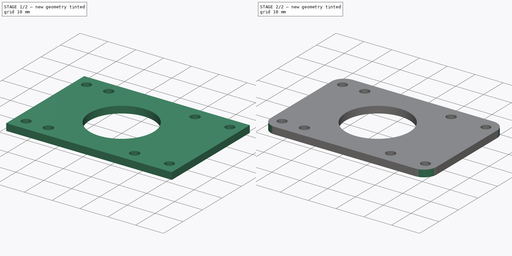
[diagram: build sequence overview — one tinted view per stage of 2, left to right]
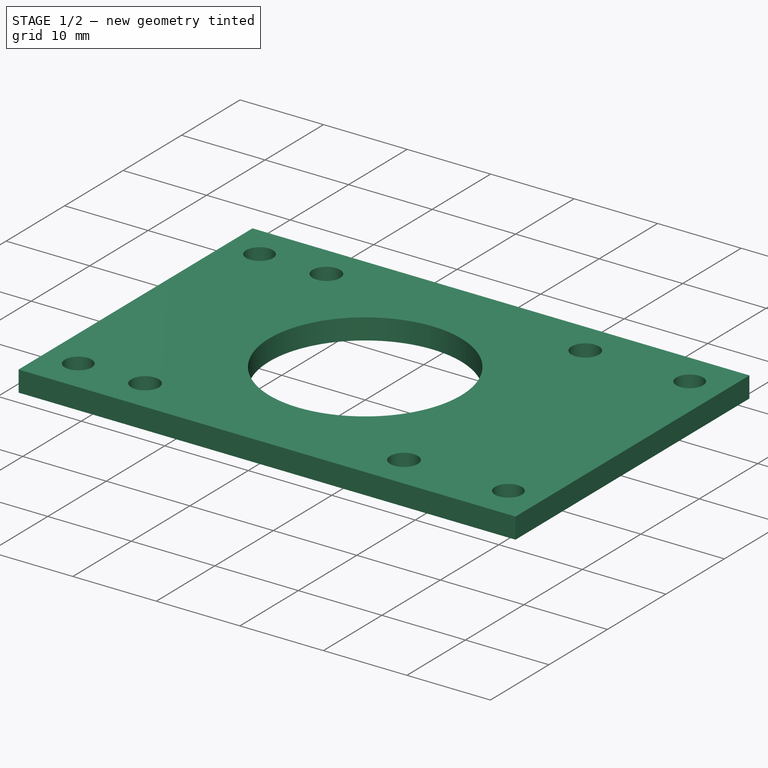
[diagram: stage 1 of 2 — iso view after this stage's code; geometry added in this stage tinted green]
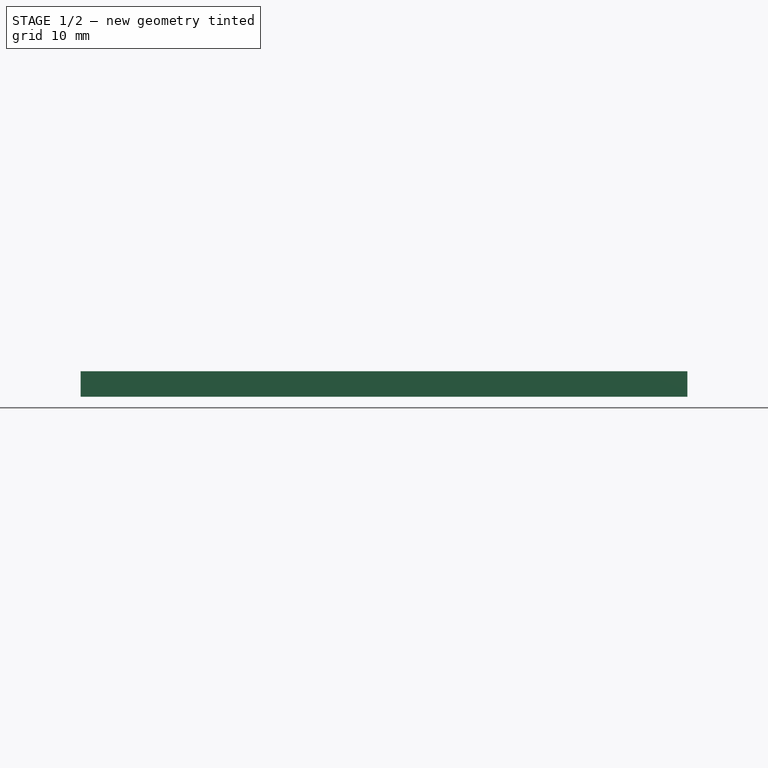
[diagram: stage 1 of 2 — front view after this stage's code; geometry added in this stage tinted green]
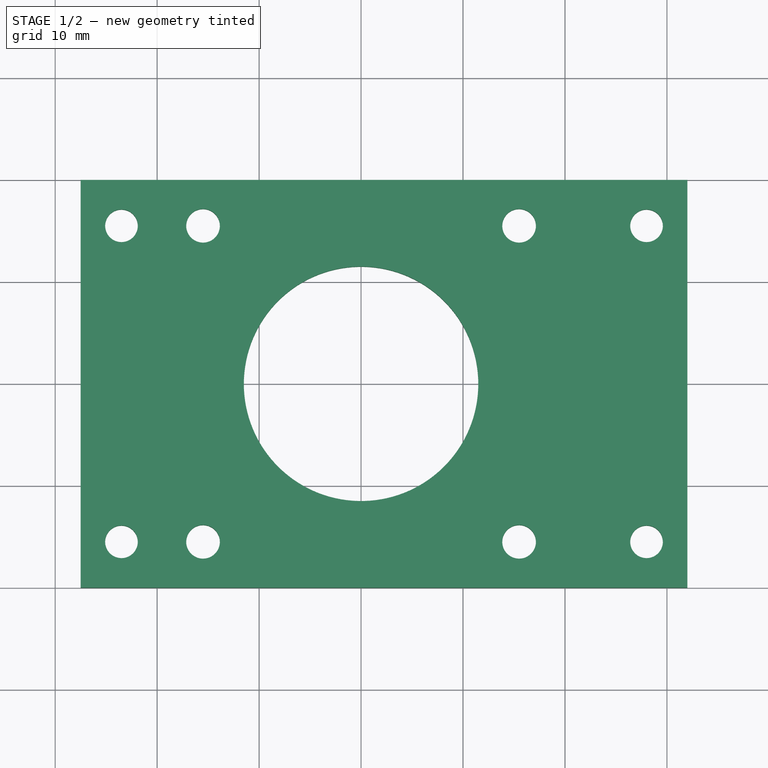
[diagram: stage 1 of 2 — top view after this stage's code; geometry added in this stage tinted green]
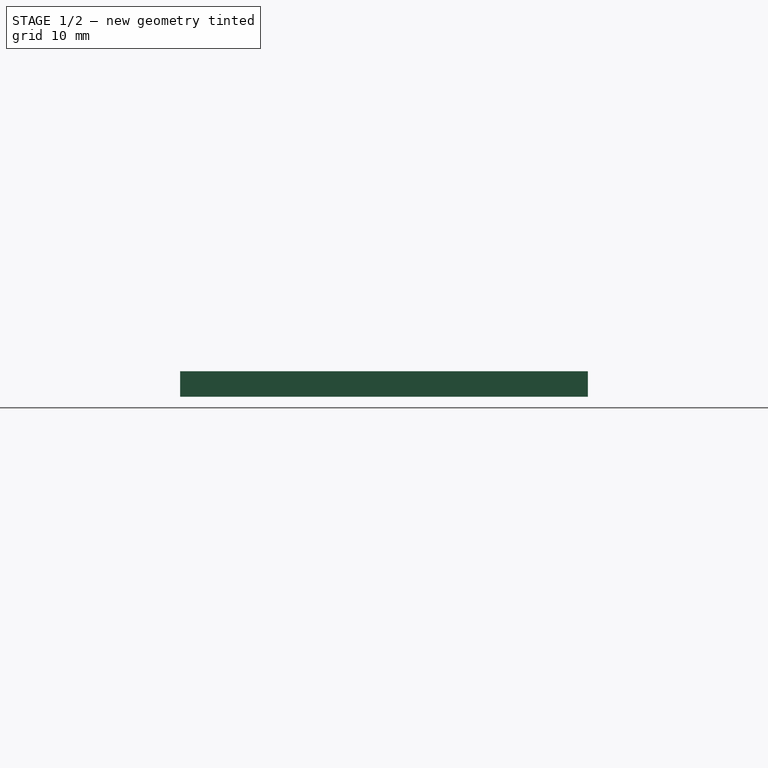
[diagram: stage 1 of 2 — right view after this stage's code; geometry added in this stage tinted green]
FCSTD DOCUMENT  (FreeCAD 0.18R14090 (Git))
Label: ExtruderDriveHolder4_NEMA17_Alt
License: All rights reserved
LicenseURL: http://en.wikipedia.org/wiki/All_rights_reserved
objects: Sketcher::SketchObject×1, PartDesign::Pad×1, PartDesign::Fillet×1, PartDesign::Body×1, App::Part×1
note: 5 computed .brp shape members not serialized (recipe doc carries the construction recipe); baked Part::Feature solids carry a one-line shape summary decoded from their .brp

FEATURE [Sketcher::SketchObject] Sketch  label="SpacerBaseSketch"
  MapMode = 5
  Support = -> [XY_Plane001]
  sketch-geometry (29):
    g0: LineSegment [constr] StartX=20 StartY=-20 StartZ=0 EndX=20 EndY=20 EndZ=0
    g1: LineSegment StartX=20 StartY=20 StartZ=0 EndX=-20 EndY=20 EndZ=0
    g2: LineSegment [constr] StartX=-20 StartY=20 StartZ=0 EndX=-20 EndY=-20 EndZ=0
    g3: LineSegment StartX=-20 StartY=-20 StartZ=0 EndX=20 EndY=-20 EndZ=0
    g4: Circle [constr] CenterX=0 CenterY=0 CenterZ=0 NormalX=0 NormalY=0 NormalZ=1 AngleXU=0 Radius=28.2843
    g5: LineSegment [constr] StartX=15.5 StartY=-15.5 StartZ=0 EndX=15.5 EndY=15.5 EndZ=0
    g6: LineSegment [constr] StartX=15.5 StartY=15.5 StartZ=0 EndX=-15.5 EndY=15.5 EndZ=0
    g7: LineSegment [constr] StartX=-15.5 StartY=15.5 StartZ=0 EndX=-15.5 EndY=-15.5 EndZ=0
    g8: LineSegment [constr] StartX=-15.5 StartY=-15.5 StartZ=0 EndX=15.5 EndY=-15.5 EndZ=0
    g9: Circle [constr] CenterX=0 CenterY=0 CenterZ=0 NormalX=0 NormalY=0 NormalZ=1 AngleXU=0 Radius=21.9203
    g10: Circle CenterX=-15.5 CenterY=15.5 CenterZ=0 NormalX=0 NormalY=0 NormalZ=1 AngleXU=0 Radius=1.65
    g11: Circle CenterX=15.5 CenterY=15.5 CenterZ=0 NormalX=0 NormalY=0 NormalZ=1 AngleXU=0 Radius=1.65
    g12: Circle CenterX=15.5 CenterY=-15.5 CenterZ=0 NormalX=0 NormalY=0 NormalZ=1 AngleXU=0 Radius=1.65
    g13: Circle CenterX=-15.5 CenterY=-15.5 CenterZ=0 NormalX=0 NormalY=0 NormalZ=1 AngleXU=0 Radius=1.65
    g14: Circle CenterX=0 CenterY=0 CenterZ=0 NormalX=0 NormalY=0 NormalZ=1 AngleXU=0 Radius=11.5
    g15: LineSegment StartX=-20 StartY=20 StartZ=0 EndX=-27.5 EndY=20 EndZ=0
    g16: LineSegment StartX=-27.5 StartY=20 StartZ=0 EndX=-27.5 EndY=-20 EndZ=0
    g17: LineSegment StartX=-27.5 StartY=-20 StartZ=0 EndX=-20 EndY=-20 EndZ=0
    g18: Circle CenterX=-23.5 CenterY=15.5 CenterZ=0 NormalX=0 NormalY=0 NormalZ=1 AngleXU=0 Radius=1.6
    g19: Circle CenterX=-23.5 CenterY=-15.5 CenterZ=0 NormalX=0 NormalY=0 NormalZ=1 AngleXU=0 Radius=1.6
    g20: LineSegment [constr] StartX=-23.5 StartY=15.5 StartZ=0 EndX=-27.5 EndY=15.5 EndZ=0
    g21: LineSegment [constr] StartX=-23.5 StartY=15.5 StartZ=0 EndX=-15.5 EndY=15.5 EndZ=0
    g22: LineSegment StartX=20 StartY=20 StartZ=0 EndX=32 EndY=20 EndZ=0
    g23: LineSegment StartX=32 StartY=20 StartZ=0 EndX=32 EndY=-20 EndZ=0
    g24: LineSegment StartX=32 StartY=-20 StartZ=0 EndX=20 EndY=-20 EndZ=0
    g25: Circle CenterX=28 CenterY=15.5 CenterZ=0 NormalX=0 NormalY=0 NormalZ=1 AngleXU=0 Radius=1.6
    g26: Circle CenterX=28 CenterY=-15.5 CenterZ=0 NormalX=0 NormalY=0 NormalZ=1 AngleXU=0 Radius=1.6
    g27: LineSegment [constr] StartX=15.5 StartY=15.5 StartZ=0 EndX=28 EndY=15.5 EndZ=0
    g28: LineSegment [constr] StartX=28 StartY=15.5 StartZ=0 EndX=32 EndY=15.5 EndZ=0
  constraints (74):
    c: Coincident(g0,g1)
    c: Coincident(g1,g2)
    c: Coincident(g2,g3)
    c: Coincident(g3,g0)
    c: Equal(g0,g1)
    c: Equal(g0,g2)
    c: Equal(g0,g3)
    c: PointOnObject(g0,g4)
    c: PointOnObject(g1,g4)
    c: PointOnObject(g2,g4)
    c: PointOnObject(g3,g4)
    c: Coincident(g4,g-1)
    c: Vertical(g0)
    c: Coincident(g5,g6)
    c: Coincident(g6,g7)
    c: Coincident(g7,g8)
    c: Coincident(g8,g5)
    c: Equal(g5,g6)
    c: Equal(g5,g7)
    c: Equal(g5,g8)
    c: PointOnObject(g5,g9)
    c: PointOnObject(g6,g9)
    c: PointOnObject(g7,g9)
    c: PointOnObject(g8,g9)
    c: Coincident(g9,g-1)
    c: Vertical(g5)
    c: Coincident(g10,g6)
    c: Coincident(g11,g5)
    c: Coincident(g12,g5)
    c: Coincident(g13,g7)
    c: Equal(g13,g12)
    c: Equal(g12,g11)
    c: Equal(g11,g10)
    c: Radius(g10) = 1.65
    c: Distance(g6) = 31
    c: Distance(g1) = 40
    c: Coincident(g14,g-1)
    c: Radius(g14) = 11.5
    c: Coincident(g15,g1)
    c: Horizontal(g15)
    c: Coincident(g16,g15)
    c: Vertical(g16)
    c: Coincident(g17,g16)
    c: Coincident(g17,g2)
    c: Horizontal(g17)
    c: Symmetric(g18,g19,g-1)
    c: Radius(g18) = 1.6
    c: Equal(g19,g18)
    c: Coincident(g20,g18)
    c: PointOnObject(g20,g16)
    c: Horizontal(g20)
    c: Distance(g20) = 4
    c: Distance(g18,g2) = 3.5
    c: Coincident(g21,g18)
    c: Coincident(g21,g10)
    c: Horizontal(g21)
    c: Coincident(g22,g0)
    c: Horizontal(g22)
    c: Coincident(g23,g22)
    c: Vertical(g23)
    c: Coincident(g24,g23)
    c: Coincident(g24,g0)
    c: Horizontal(g24)
    c: Equal(g26,g25)
    c: Equal(g25,g18)
    c: Coincident(g27,g11)
    c: Coincident(g27,g25)
    c: Horizontal(g27)
    c: Symmetric(g25,g26,g-1)
    c: Coincident(g28,g25)
    c: PointOnObject(g28,g23)
    c: Horizontal(g28)
    c: Distance(g28) = 4
    c: Distance(g25,g0) = 8
FEATURE [PartDesign::Pad] Pad  label="SpacerBasePad"
  Length = 2.5
  Length2 = 100
  Profile = -> Sketch
  Type = 0
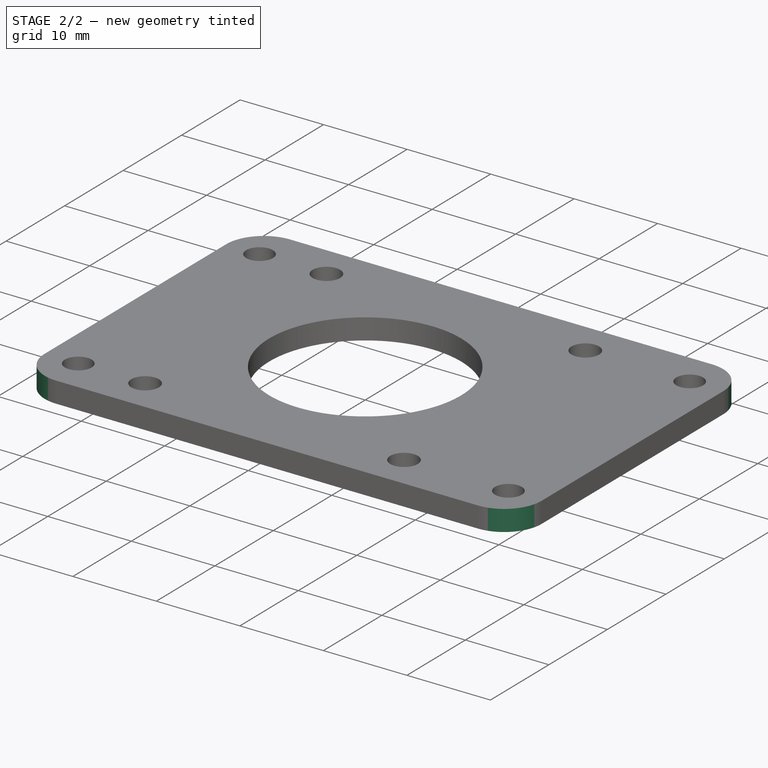
[diagram: stage 2 of 2 — iso view after this stage's code; geometry added in this stage tinted green]
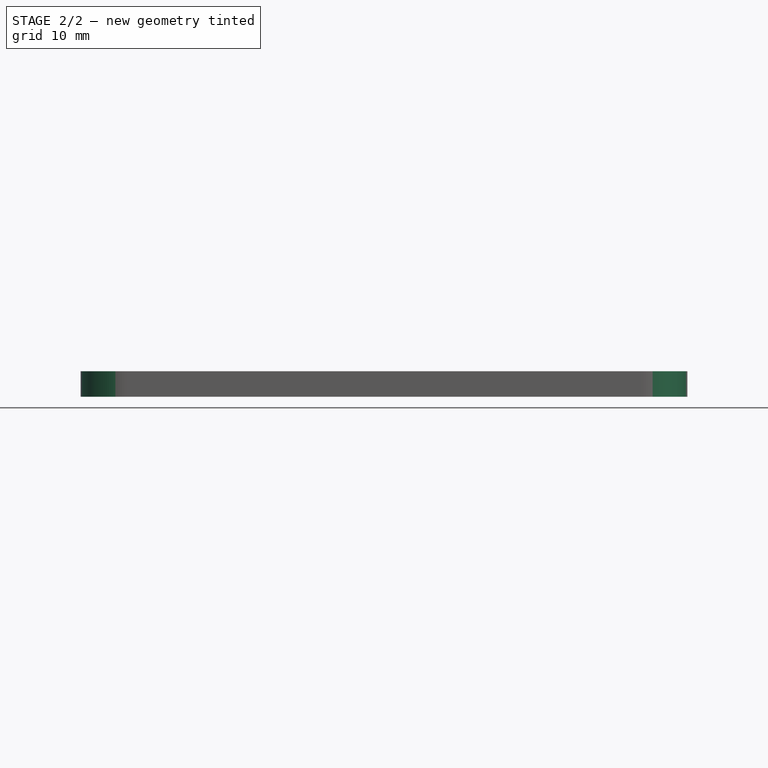
[diagram: stage 2 of 2 — front view after this stage's code; geometry added in this stage tinted green]
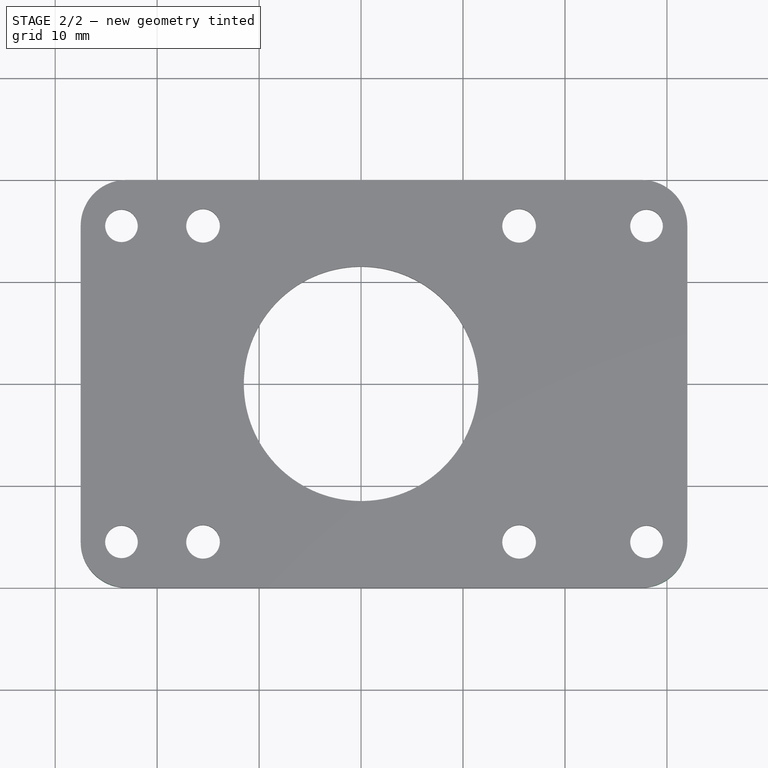
[diagram: stage 2 of 2 — top view after this stage's code; geometry added in this stage tinted green]
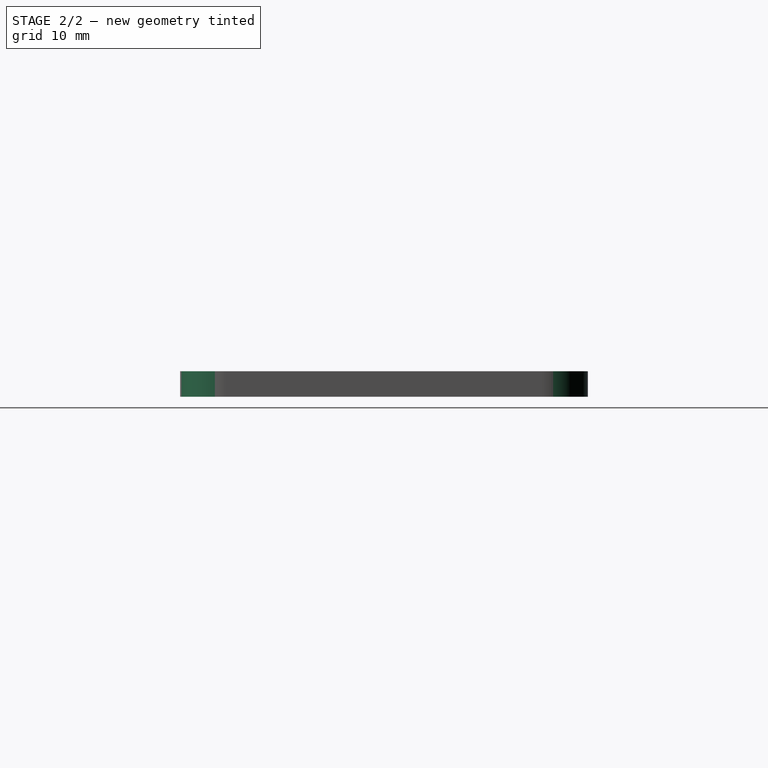
[diagram: stage 2 of 2 — right view after this stage's code; geometry added in this stage tinted green]
FEATURE [PartDesign::Fillet] Fillet  label="HolderFillet"
  Base = -> Pad [Edge17,Edge20,Edge5,Edge8]
  BaseFeature = -> Pad
  Radius = 4.5
FEATURE [PartDesign::Body] Body  label="Nema17SpacerBody"
  Group = -> [Sketch,Pad,Fillet]
  Origin = -> Origin001
  Tip = -> Fillet
FEATURE [App::Part] Part  label="Nema17Spacer"
  Group = -> [Body]
  License = CC BY 3.0
  LicenseURL = http://creativecommons.org/licenses/by/3.0/
  Origin = -> Origin
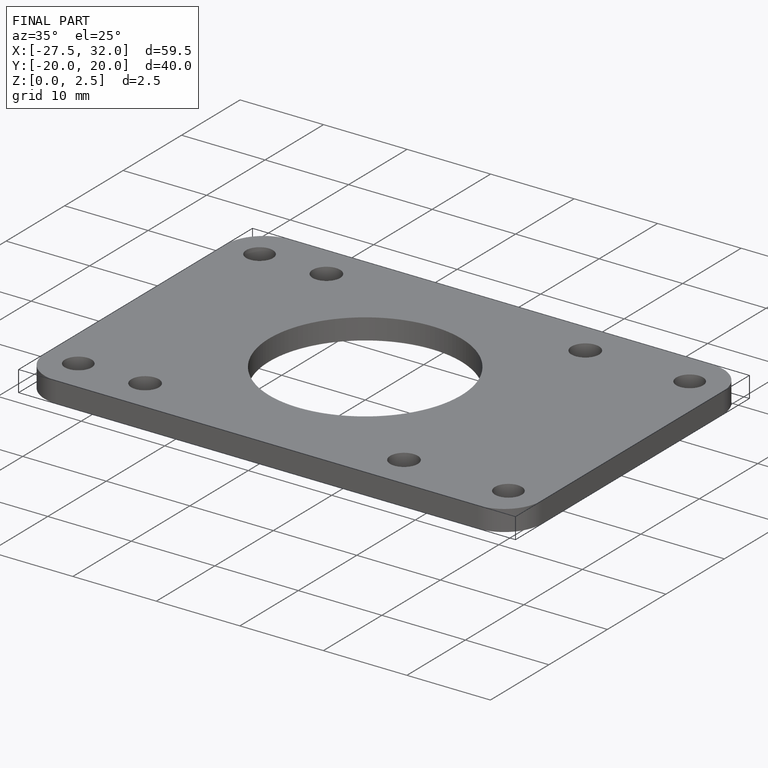
[diagram: finished part — iso view with bounding-box wireframe]
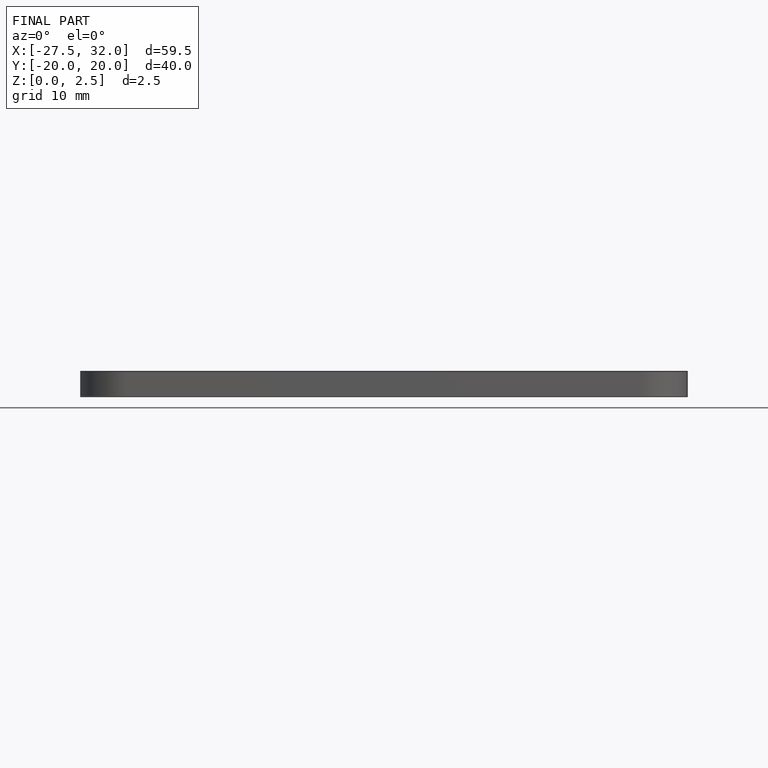
[diagram: finished part — front view with bounding-box wireframe]
